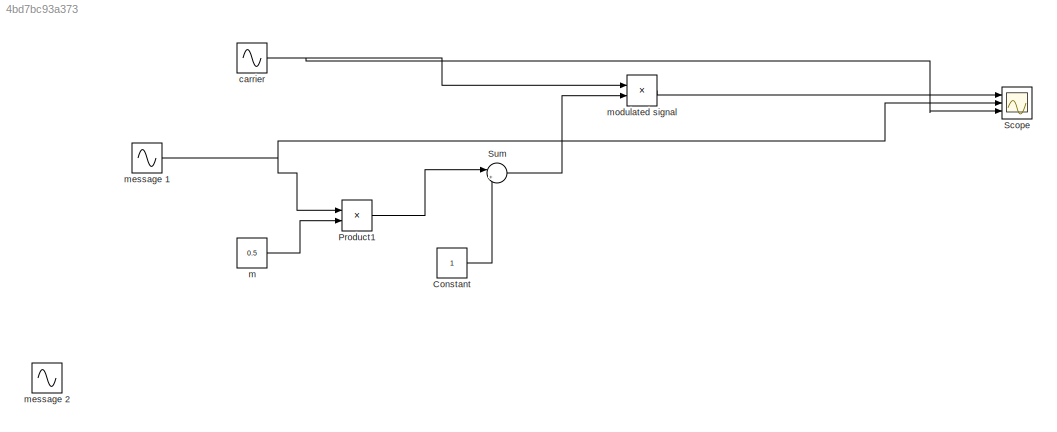
MODEL slx_4bd7bc93a373
KIND model
CONFIG AbsTol = auto
CONFIG EnableMultiTasking = off
CONFIG FixedStep = auto
CONFIG MaxStep = auto
CONFIG MinStep = auto
CONFIG RelTol = 1e-3
CONFIG SampleTimeConstraint = Unconstrained
CONFIG Solver = VariableStepAuto
CONFIG SolverName = VariableStepAuto
CONFIG StartTime = 0.0
CONFIG StopTime = 0.1
BLOCK [Constant] Constant
BLOCK [Product] Product1
  InputSameDT = off
  OutDataTypeStr = Inherit: Inherit via internal rule
  Ports = [2, 1]
  RndMeth = Floor
  SaturateOnIntegerOverflow = off
BLOCK [Scope] Scope
  Floating = off
  NumInputPorts = 3
  Ports = [3]
  ScopeSpecificationString = Simulink.scopes.TimeScopeBlockCfg('CurrentConfiguration', extmgr.ConfigurationSet(extmgr.Configuration('Core','General UI',true),extmgr.Configuration('Core','Source UI',true),extmgr.Configuration('Sources','WiredSimulink',true),extmgr.Configuration('Visuals','Time Domain',true,'SerializedDisplays',{struct('MinYLimReal','-296.625','MaxYLimReal','254.625','YLabelReal','','MinYLimMag',' 0.00000','Max...<+2686ch>
BLOCK [Sum] Sum
  IconShape = round
  InputSameDT = off
  Inputs = |++
  OutDataTypeStr = Inherit: Inherit via internal rule
  Ports = [2, 1]
  SaturateOnIntegerOverflow = off
BLOCK [Sin] carrier
  Amplitude = 21
  Frequency = 2*pi*6*50*10
  Phase = pi/6
  Ports = [0, 1]
  SampleTime = 0
BLOCK [Constant] m
  Value = 0.5
BLOCK [Sin] message 1
  Amplitude = 21
  Frequency = 2*pi*6*50
  Phase = pi/6
  Ports = [0, 1]
  SampleTime = 0
BLOCK [Sin] message 2
  Frequency = 2*pi*6
  Phase = pi/2
  Ports = [0, 1]
  SampleTime = 0
BLOCK [Product] modulated signal
  InputSameDT = off
  OutDataTypeStr = Inherit: Inherit via internal rule
  Ports = [2, 1]
  RndMeth = Floor
  SaturateOnIntegerOverflow = off
LINE Constant:1 -> Sum:2
LINE Product1:1 -> Sum:1
LINE Sum:1 -> modulated signal:2
NET carrier:1 -> Scope:3, modulated signal:1
LINE m:1 -> Product1:2
NET message 1:1 -> Product1:1, Scope:2
LINE modulated signal:1 -> Scope:1
note: NET lines group one-source signal fan-out (src -> all destinations, sorted); 1:1 wires keep LINE
